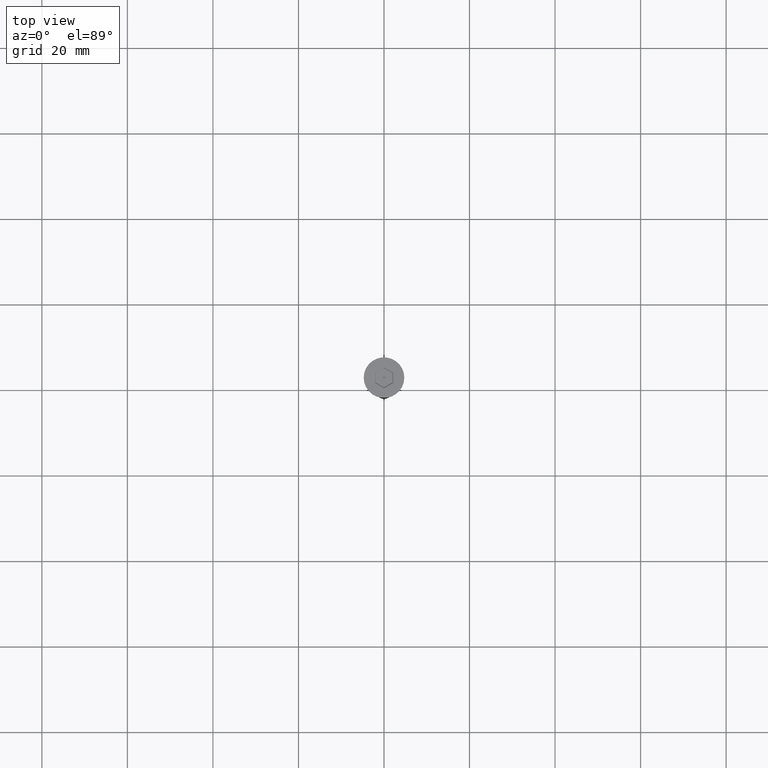
[diagram: clean part render]
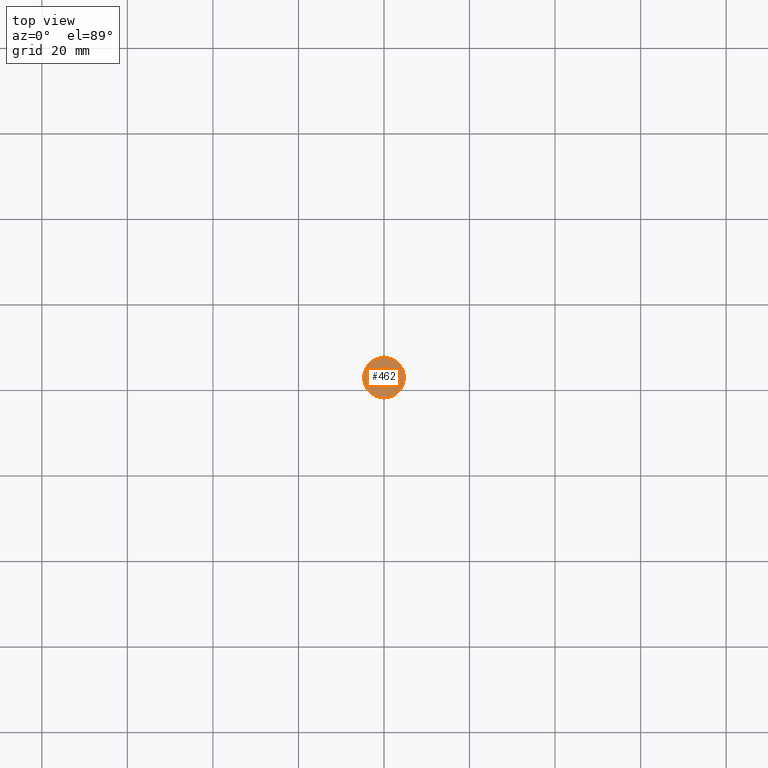
[diagram: same view with one face highlighted and labeled with its STEP entity id]
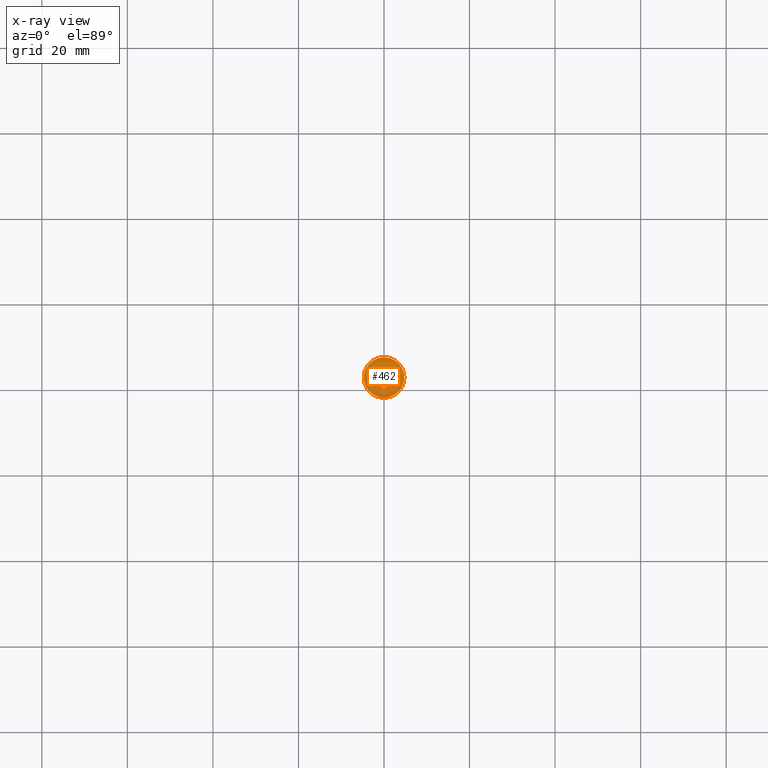
[diagram: x-ray of the same camera — body ghosted, the highlighted face saturated]
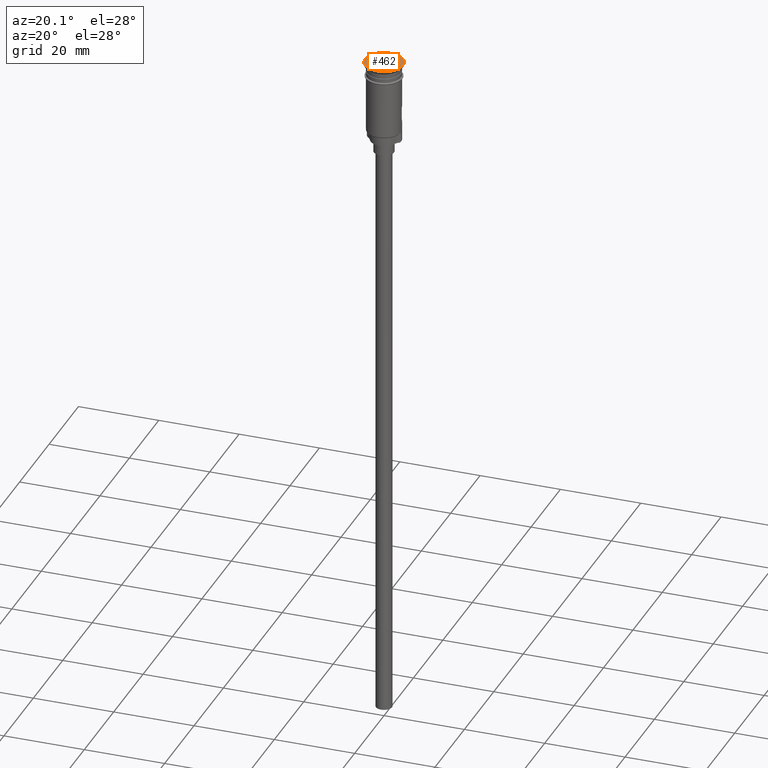
[diagram: same view with one face highlighted and labeled with its STEP entity id]
A machine part, top view. The second image highlights one B-rep face of the part: STEP entity #462.
The next image is the same camera in x-ray: the body ghosted, the highlighted face saturated — about 0% of this face is hidden behind the body in this view.
A second angle (auxiliary view) of the same face is appended — the face is thin or edge-on in the first view.
In plain terms, the highlighted planar face has unit normal (0, -0, 1).
Its self-contained STEP definition (entity closure, byte-faithful):
#30 = VECTOR ( 'NONE', #1101, 1000.000000000000114 ) ;
#51 = CIRCLE ( 'NONE', #1451, 4.750000000000000000 ) ;
#59 = VECTOR ( 'NONE', #1019, 1000.000000000000000 ) ;
#60 = DIRECTION ( 'NONE',  ( 0.8660254037844385966, -0.5000000000000001110, 0.000000000000000000 ) ) ;
#79 = ORIENTED_EDGE ( 'NONE', *, *, #322, .T. ) ;
#91 = CARTESIAN_POINT ( 'NONE',  ( -6.517717499969021618E-16, -2.482606157515383050, 0.000000000000000000 ) ) ;
#92 = VERTEX_POINT ( 'NONE', #493 ) ;
#137 = CARTESIAN_POINT ( 'NONE',  ( -2.149999999999994138, 1.241303078757690859, 0.000000000000000000 ) ) ;
#154 = VERTEX_POINT ( 'NONE', #137 ) ;
#165 = EDGE_CURVE ( 'NONE', #265, #1288, #245, .T. ) ;
#174 = VERTEX_POINT ( 'NONE', #406 ) ;
#219 = VERTEX_POINT ( 'NONE', #1033 ) ;
#237 = VECTOR ( 'NONE', #518, 999.9999999999998863 ) ;
#240 = LINE ( 'NONE', #1475, #30 ) ;
#245 = LINE ( 'NONE', #625, #650 ) ;
#255 = CARTESIAN_POINT ( 'NONE',  ( -4.750000000000000000, 5.817072295949927426E-16, 0.000000000000000000 ) ) ;
#265 = VERTEX_POINT ( 'NONE', #300 ) ;
#274 = CARTESIAN_POINT ( 'NONE',  ( 0.000000000000000000, 0.000000000000000000, 0.000000000000000000 ) ) ;
#278 = VERTEX_POINT ( 'NONE', #285 ) ;
#285 = CARTESIAN_POINT ( 'NONE',  ( 2.149999999999993250, 1.241303078757691969, 0.000000000000000000 ) ) ;
#300 = CARTESIAN_POINT ( 'NONE',  ( 2.149999999999992806, -1.241303078757692413, 0.000000000000000000 ) ) ;
#314 = AXIS2_PLACEMENT_3D ( 'NONE', #274, #925, #1022 ) ;
#322 = EDGE_CURVE ( 'NONE', #278, #265, #1551, .T. ) ;
#357 = ORIENTED_EDGE ( 'NONE', *, *, #664, .T. ) ;
#362 = FACE_OUTER_BOUND ( 'NONE', #408, .T. ) ;
#406 = CARTESIAN_POINT ( 'NONE',  ( -2.149999999999994582, -1.241303078757691303, 0.000000000000000000 ) ) ;
#408 = EDGE_LOOP ( 'NONE', ( #751, #660 ) ) ;
#462 = ADVANCED_FACE ( 'NONE', ( #956, #362 ), #1329, .T. ) ;
#493 = CARTESIAN_POINT ( 'NONE',  ( 4.750000000000000000, 0.000000000000000000, 0.000000000000000000 ) ) ;
#494 = EDGE_CURVE ( 'NONE', #994, #92, #51, .T. ) ;
#518 = DIRECTION ( 'NONE',  ( 0.8660254037844385966, 0.5000000000000002220, 0.000000000000000000 ) ) ;
#547 = DIRECTION ( 'NONE',  ( -1.926044357355332218E-16, -1.000000000000000000, 0.000000000000000000 ) ) ;
#587 = DIRECTION ( 'NONE',  ( 1.000000000000000000, 0.000000000000000000, 0.000000000000000000 ) ) ;
#625 = CARTESIAN_POINT ( 'NONE',  ( 0.09999999999999617528, -2.424871130596422564, 0.000000000000000000 ) ) ;
#650 = VECTOR ( 'NONE', #1371, 1000.000000000000000 ) ;
#660 = ORIENTED_EDGE ( 'NONE', *, *, #494, .T. ) ;
#664 = EDGE_CURVE ( 'NONE', #219, #278, #1060, .T. ) ;
#714 = DIRECTION ( 'NONE',  ( 0.000000000000000000, -0.000000000000000000, 1.000000000000000000 ) ) ;
#747 = DIRECTION ( 'NONE',  ( 1.000000000000000000, 0.000000000000000000, 0.000000000000000000 ) ) ;
#751 = ORIENTED_EDGE ( 'NONE', *, *, #1146, .T. ) ;
#820 = CARTESIAN_POINT ( 'NONE',  ( -0.09999999999999692468, 2.424871130596422564, 0.000000000000000000 ) ) ;
#829 = EDGE_LOOP ( 'NONE', ( #1469, #1357, #1090, #357, #79, #1003 ) ) ;
#925 = DIRECTION ( 'NONE',  ( -0.000000000000000000, -0.000000000000000000, 1.000000000000000000 ) ) ;
#956 = FACE_BOUND ( 'NONE', #829, .T. ) ;
#994 = VERTEX_POINT ( 'NONE', #255 ) ;
#1003 = ORIENTED_EDGE ( 'NONE', *, *, #165, .T. ) ;
#1019 = DIRECTION ( 'NONE',  ( 9.630221786776664787E-17, 1.000000000000000000, 0.000000000000000000 ) ) ;
#1020 = AXIS2_PLACEMENT_3D ( 'NONE', #1470, #714, #587 ) ;
#1022 = DIRECTION ( 'NONE',  ( 1.000000000000000000, 0.000000000000000000, 0.000000000000000000 ) ) ;
#1026 = CARTESIAN_POINT ( 'NONE',  ( 0.000000000000000000, 0.000000000000000000, 0.000000000000000000 ) ) ;
#1033 = CARTESIAN_POINT ( 'NONE',  ( 3.890099324841783067E-16, 2.482606157515383494, 0.000000000000000000 ) ) ;
#1042 = LINE ( 'NONE', #820, #237 ) ;
#1060 = LINE ( 'NONE', #1173, #1427 ) ;
#1066 = VECTOR ( 'NONE', #547, 1000.000000000000000 ) ;
#1090 = ORIENTED_EDGE ( 'NONE', *, *, #1540, .T. ) ;
#1101 = DIRECTION ( 'NONE',  ( -0.8660254037844385966, 0.5000000000000001110, 0.000000000000000000 ) ) ;
#1146 = EDGE_CURVE ( 'NONE', #92, #994, #1175, .T. ) ;
#1162 = CARTESIAN_POINT ( 'NONE',  ( 2.149999999999992806, -1.125833024919770331, 0.000000000000000000 ) ) ;
#1173 = CARTESIAN_POINT ( 'NONE',  ( 2.049999999999996714, 1.299038105676652455, 0.000000000000000000 ) ) ;
#1175 = CIRCLE ( 'NONE', #314, 4.750000000000000000 ) ;
#1288 = VERTEX_POINT ( 'NONE', #91 ) ;
#1311 = CARTESIAN_POINT ( 'NONE',  ( -2.149999999999994138, 1.125833024919770109, 0.000000000000000000 ) ) ;
#1329 = PLANE ( 'NONE',  #1020 ) ;
#1357 = ORIENTED_EDGE ( 'NONE', *, *, #1563, .T. ) ;
#1371 = DIRECTION ( 'NONE',  ( -0.8660254037844387076, -0.4999999999999998335, 0.000000000000000000 ) ) ;
#1376 = DIRECTION ( 'NONE',  ( -0.000000000000000000, -0.000000000000000000, 1.000000000000000000 ) ) ;
#1427 = VECTOR ( 'NONE', #60, 1000.000000000000114 ) ;
#1451 = AXIS2_PLACEMENT_3D ( 'NONE', #1026, #1376, #747 ) ;
#1469 = ORIENTED_EDGE ( 'NONE', *, *, #1472, .T. ) ;
#1470 = CARTESIAN_POINT ( 'NONE',  ( 0.000000000000000000, 0.000000000000000000, 0.000000000000000000 ) ) ;
#1472 = EDGE_CURVE ( 'NONE', #1288, #174, #240, .T. ) ;
#1475 = CARTESIAN_POINT ( 'NONE',  ( -2.049999999999997602, -1.299038105676652011, 0.000000000000000000 ) ) ;
#1528 = LINE ( 'NONE', #1311, #59 ) ;
#1540 = EDGE_CURVE ( 'NONE', #154, #219, #1042, .T. ) ;
#1551 = LINE ( 'NONE', #1162, #1066 ) ;
#1563 = EDGE_CURVE ( 'NONE', #174, #154, #1528, .T. ) ;